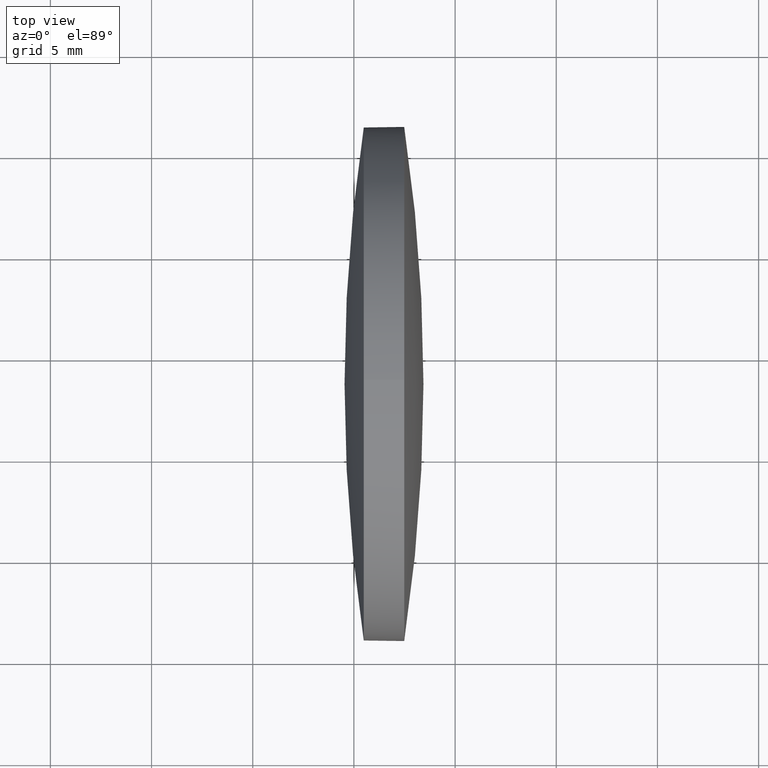
[diagram: clean part render]
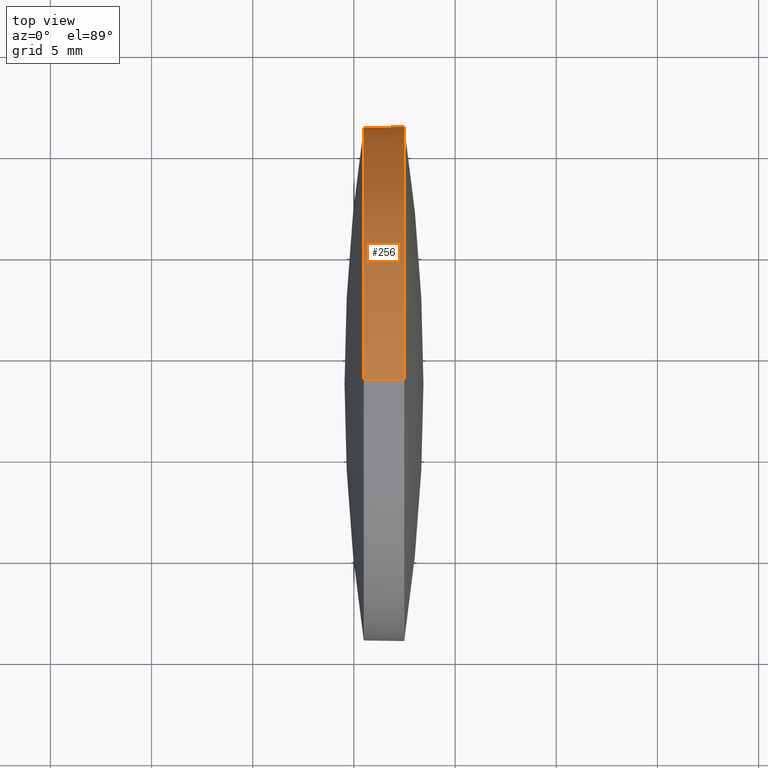
[diagram: same view with one face highlighted and labeled with its STEP entity id]
A machine part, top view. The second image highlights one B-rep face of the part: STEP entity #256.
In plain terms, the highlighted conical surface has half-angle 0.239 deg.
Its self-contained STEP definition (entity closure, byte-faithful):
#2 = CARTESIAN_POINT ( 'NONE',  ( 87.48661080392687900, 48.63209213917348000, -12.70417422867516100 ) ) ;
#3 = DIRECTION ( 'NONE',  ( -1.000000000000000000, -0.0000000000000000000, -0.0000000000000000000 ) ) ;
#16 = LINE ( 'NONE', #274, #141 ) ;
#17 = DIRECTION ( 'NONE',  ( 0.0000000000000000000, 0.0000000000000000000, 1.000000000000000000 ) ) ;
#18 = DIRECTION ( 'NONE',  ( 0.9999912878695206300, 5.111955789612099800E-019, 0.004174228678155401900 ) ) ;
#26 = FACE_OUTER_BOUND ( 'NONE', #74, .T. ) ;
#34 = VERTEX_POINT ( 'NONE', #223 ) ;
#61 = ORIENTED_EDGE ( 'NONE', *, *, #109, .T. ) ;
#64 = EDGE_CURVE ( 'NONE', #139, #303, #209, .T. ) ;
#66 = ORIENTED_EDGE ( 'NONE', *, *, #101, .F. ) ;
#71 = CARTESIAN_POINT ( 'NONE',  ( 85.48662822818782600, 48.63209213917348000, 0.0000000000000000000 ) ) ;
#74 = EDGE_LOOP ( 'NONE', ( #66, #126, #95, #61, #161 ) ) ;
#75 = DIRECTION ( 'NONE',  ( -1.000000000000000000, -0.0000000000000000000, -0.0000000000000000000 ) ) ;
#95 = ORIENTED_EDGE ( 'NONE', *, *, #64, .T. ) ;
#100 = DIRECTION ( 'NONE',  ( 1.000000000000000000, 0.0000000000000000000, 0.0000000000000000000 ) ) ;
#101 = EDGE_CURVE ( 'NONE', #198, #34, #196, .T. ) ;
#105 = CARTESIAN_POINT ( 'NONE',  ( 87.48661080392687900, 48.63209213917348000, 0.0000000000000000000 ) ) ;
#109 = EDGE_CURVE ( 'NONE', #303, #272, #239, .T. ) ;
#120 = AXIS2_PLACEMENT_3D ( 'NONE', #199, #3, #175 ) ;
#126 = ORIENTED_EDGE ( 'NONE', *, *, #288, .T. ) ;
#136 = VECTOR ( 'NONE', #322, 1000.000000000000000 ) ;
#139 = VERTEX_POINT ( 'NONE', #153 ) ;
#141 = VECTOR ( 'NONE', #18, 1000.000000000000000 ) ;
#146 = EDGE_CURVE ( 'NONE', #34, #272, #268, .T. ) ;
#153 = CARTESIAN_POINT ( 'NONE',  ( 87.48661080392687900, 48.63209213917348000, 12.70417422867516100 ) ) ;
#155 = CARTESIAN_POINT ( 'NONE',  ( 85.48662822818782600, 48.63209213917348000, -12.69582577131885000 ) ) ;
#156 = CARTESIAN_POINT ( 'NONE',  ( 85.48662822818782600, 48.63209213917348000, 12.69582577131883200 ) ) ;
#161 = ORIENTED_EDGE ( 'NONE', *, *, #146, .F. ) ;
#166 = AXIS2_PLACEMENT_3D ( 'NONE', #222, #171, #17 ) ;
#167 = CONICAL_SURFACE ( 'NONE', #188, 12.69582577131885000, 0.004174240800339277600 ) ;
#171 = DIRECTION ( 'NONE',  ( -1.000000000000000000, -0.0000000000000000000, -0.0000000000000000000 ) ) ;
#175 = DIRECTION ( 'NONE',  ( 0.0000000000000000000, 0.0000000000000000000, 1.000000000000000000 ) ) ;
#188 = AXIS2_PLACEMENT_3D ( 'NONE', #71, #100, #302 ) ;
#196 = CIRCLE ( 'NONE', #120, 12.69582577131885000 ) ;
#198 = VERTEX_POINT ( 'NONE', #156 ) ;
#199 = CARTESIAN_POINT ( 'NONE',  ( 85.48662822818782600, 48.63209213917348000, 0.0000000000000000000 ) ) ;
#209 = CIRCLE ( 'NONE', #166, 12.70417422867516100 ) ;
#222 = CARTESIAN_POINT ( 'NONE',  ( 87.48661080392687900, 48.63209213917348000, 0.0000000000000000000 ) ) ;
#223 = CARTESIAN_POINT ( 'NONE',  ( 85.48662822818782600, 48.63209213917348000, -12.69582577131883200 ) ) ;
#239 = CIRCLE ( 'NONE', #279, 12.70417422867516100 ) ;
#250 = CARTESIAN_POINT ( 'NONE',  ( 87.48661080392689400, 61.33626636784865100, 1.555812630495729100E-015 ) ) ;
#256 = ADVANCED_FACE ( 'NONE', ( #26 ), #167, .T. ) ;
#268 = LINE ( 'NONE', #155, #136 ) ;
#272 = VERTEX_POINT ( 'NONE', #2 ) ;
#274 = CARTESIAN_POINT ( 'NONE',  ( 85.48662822818782600, 48.63209213917348000, 12.69582577131885000 ) ) ;
#276 = DIRECTION ( 'NONE',  ( 0.0000000000000000000, 0.0000000000000000000, 1.000000000000000000 ) ) ;
#279 = AXIS2_PLACEMENT_3D ( 'NONE', #105, #75, #276 ) ;
#288 = EDGE_CURVE ( 'NONE', #198, #139, #16, .T. ) ;
#302 = DIRECTION ( 'NONE',  ( 0.0000000000000000000, 0.0000000000000000000, -1.000000000000000000 ) ) ;
#303 = VERTEX_POINT ( 'NONE', #250 ) ;
#322 = DIRECTION ( 'NONE',  ( 0.9999912878695206300, 0.0000000000000000000, -0.004174228678155401900 ) ) ;